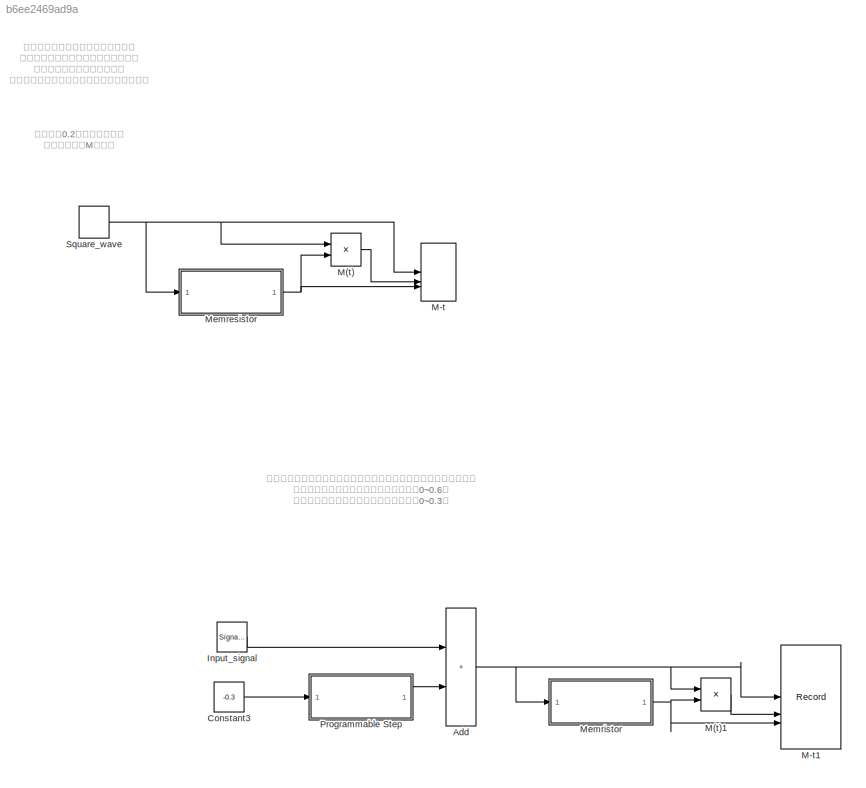
MODEL slx_b6ee2469ad9a
KIND model
CONFIG AbsTol = auto
CONFIG EnableMultiTasking = off
CONFIG FixedStep = auto
CONFIG MaxStep = auto
CONFIG MinStep = auto
CONFIG RelTol = 1e-3
CONFIG SampleTimeConstraint = Unconstrained
CONFIG SolverName = VariableStepAuto
CONFIG StartTime = 0.0
CONFIG StopTime = 4
WORKSPACE source: mxarray member
WORKSPACE R1 = 20
WORKSPACE R2 = 500
WORKSPACE VT = 0.5
WORKSPACE a = 500
WORKSPACE b = 1000
BLOCK [Sum] Add
  IconShape = rectangular
BLOCK [Constant] Constant3
  Value = -0.3
BLOCK [SignalGenerator] Input_signal
  Amplitude = 0.1
  Frequency = 300
  Units = rad/sec
BLOCK [Product] M(t)
  Inputs = */
BLOCK [Product] M(t)1
  Inputs = */
BLOCK [Record] M-t
  CompatibilityTag = XY
  FileSettingsInternal = {"entries":[{"content":{"excelSettings":{"content":{},"type":"Streamout.ExcelSettings"}},"type":"Streamout.FileSettingStorage","uuid":""}],"packageUris":["http:\/\/schema.mathworks.com\/mf0\/streamout_blocks\/R2020a"],"version":"1.0"}  <repeated x4 — deduplicated; at blocks: M-t, M-t1, XY Graph>
  Layout = [1 1]
  SignalsInternal = {"entries":[{"content":{"signals":[{"content":{"blockPath":[],"dimensions":[1],"domain":"","lineColor":"#4dbeee","port":1,"signalID":80,"signalName":"Square_wave"},"type":"RecordBlkView.Signal","uuid":""},{"content":{"blockPath":[],"dimensions":[1],"domain":"","lineColor":"#a2142f","plots":[1],"port":2,"signalID":83,"signalName":"M(t)"},"type":"RecordBlkView.Signal","uuid":""},{"content":{"blockPa...<+295ch>
BLOCK [Record] M-t1
  CompatibilityTag = XY
  Layout = [1 1]
  SignalsInternal = {"entries":[{"content":{"signals":[{"content":{"blockPath":[],"dimensions":[1],"domain":"","lineColor":"#4dbeee","port":1,"signalID":69,"signalName":"Add"},"type":"RecordBlkView.Signal","uuid":""},{"content":{"blockPath":[],"dimensions":[1],"domain":"","lineColor":"#a2142f","plots":[1],"port":2,"signalID":72,"signalName":"M(t)1"},"type":"RecordBlkView.Signal","uuid":""},{"content":{"blockPath":[],...<+289ch>
  VisualizationBindings = {"sparklinesplugin":{"info":[{"bindingParametersList":[],"subplotID":1}]}}
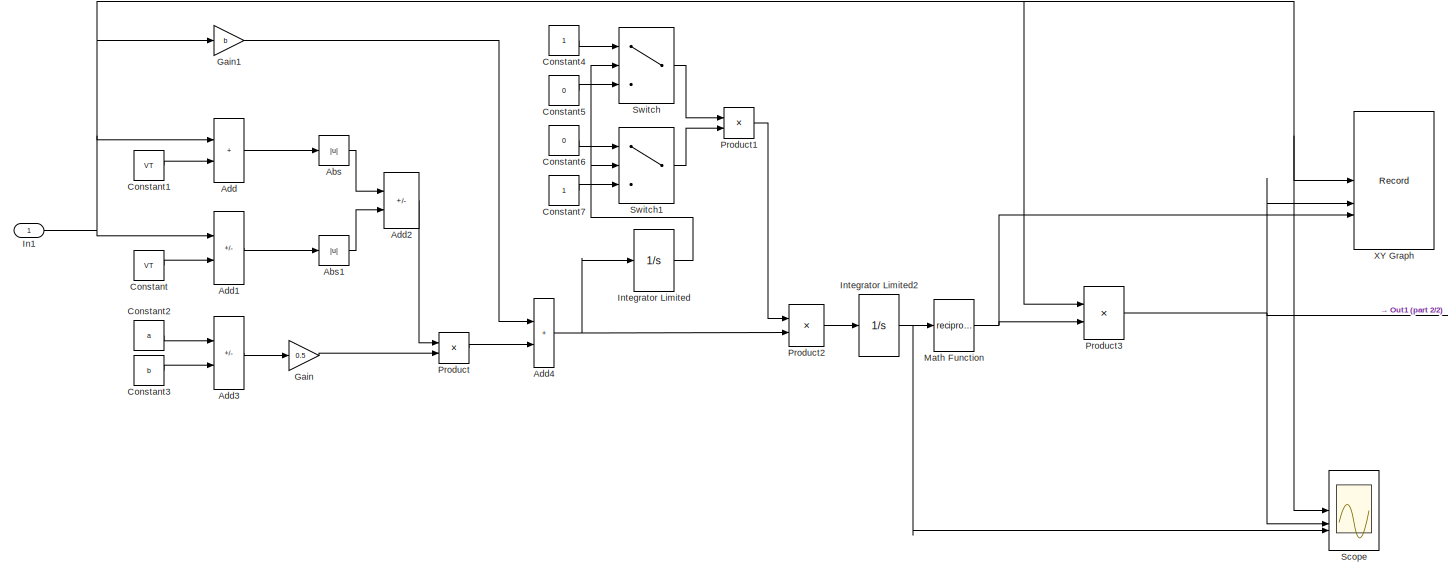
[diagram: Memresistor - part 1/2, most of the canvas]
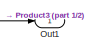
[diagram: Memresistor - part 2/2, middle right region]
BLOCK [SubSystem] Memresistor
BLOCK [Abs] Memresistor/Abs
  SaturateOnIntegerOverflow = off
BLOCK [Abs] Memresistor/Abs1
  SaturateOnIntegerOverflow = off
BLOCK [Sum] Memresistor/Add
  IconShape = rectangular
BLOCK [Sum] Memresistor/Add1
  IconShape = rectangular
  Inputs = +-
BLOCK [Sum] Memresistor/Add2
  IconShape = rectangular
  Inputs = +-
BLOCK [Sum] Memresistor/Add3
  IconShape = rectangular
  Inputs = +-
BLOCK [Sum] Memresistor/Add4
  IconShape = rectangular
BLOCK [Constant] Memresistor/Constant
  Value = VT
BLOCK [Constant] Memresistor/Constant1
  Value = VT
BLOCK [Constant] Memresistor/Constant2
  Value = a
BLOCK [Constant] Memresistor/Constant3
  Value = b
BLOCK [Constant] Memresistor/Constant4
  SampleTime = 0.001
BLOCK [Constant] Memresistor/Constant5
  SampleTime = 0.001
  Value = 0
BLOCK [Constant] Memresistor/Constant6
  SampleTime = 0.001
  Value = 0
BLOCK [Constant] Memresistor/Constant7
  SampleTime = 0.001
BLOCK [Gain] Memresistor/Gain
  Gain = 0.5
BLOCK [Gain] Memresistor/Gain1
  Gain = b
BLOCK [Inport] Memresistor/In1
BLOCK [Integrator] Memresistor/Integrator Limited
  LowerSaturationLimit = 0
  UpperSaturationLimit = 1600
  WrappedStateLowerValue = 0
  WrappedStateUpperValue = 500
BLOCK [Integrator] Memresistor/Integrator Limited2
  InitialCondition = 480
  LowerSaturationLimit = 0
  UpperSaturationLimit = 1600
  WrappedStateLowerValue = 0
  WrappedStateUpperValue = 500
BLOCK [Math] Memresistor/Math Function
  Operator = reciprocal
BLOCK [Outport] Memresistor/Out1
BLOCK [Product] Memresistor/Product
BLOCK [Product] Memresistor/Product1
BLOCK [Product] Memresistor/Product2
BLOCK [Product] Memresistor/Product3
BLOCK [Scope] Memresistor/Scope
  Floating = off
  NumInputPorts = 3
  ScopeSpecificationString = Simulink.scopes.TimeScopeBlockCfg('CurrentConfiguration', extmgr.ConfigurationSet(extmgr.Configuration('Core','General UI',true),extmgr.Configuration('Core','Source UI',true),extmgr.Configuration('Sources','WiredSimulink',true,'DataLoggingVariableName','ScopeData1'),extmgr.Configuration('Visuals','Time Domain',true,'SerializedDisplays',{struct('MinYLimReal','-1.25','MaxYLimReal','1.25','YLabelReal...<+2911ch>
BLOCK [Switch] Memresistor/Switch
  InputSameDT = off
  RndMeth = Ceiling
  SaturateOnIntegerOverflow = off
  Threshold = R1
BLOCK [Switch] Memresistor/Switch1
  Criteria = u2 > Threshold
  InputSameDT = off
  RndMeth = Ceiling
  SaturateOnIntegerOverflow = off
  Threshold = R2
BLOCK [Record] Memresistor/XY Graph
  CompatibilityTag = XY
  Layout = [2 2]
  SignalsInternal = {"entries":[{"content":{"signals":[{"content":{"blockPath":[],"dimensions":[1],"domain":"","lineColor":"#7e2f8e","port":1,"signalID":47,"signalName":"In1"},"type":"RecordBlkView.Signal","uuid":""},{"content":{"blockPath":[],"dimensions":[1],"domain":"","lineColor":"#77ac30","port":2,"signalID":50,"signalName":"Product3"},"type":"RecordBlkView.Signal","uuid":""},{"content":{"blockPath":[],"dimensio...<+282ch>
  VisualizationBindings = {"xyplotplugin":{"info":[{"series":[],"subplotID":1},{"series":[],"subplotID":9}]}}
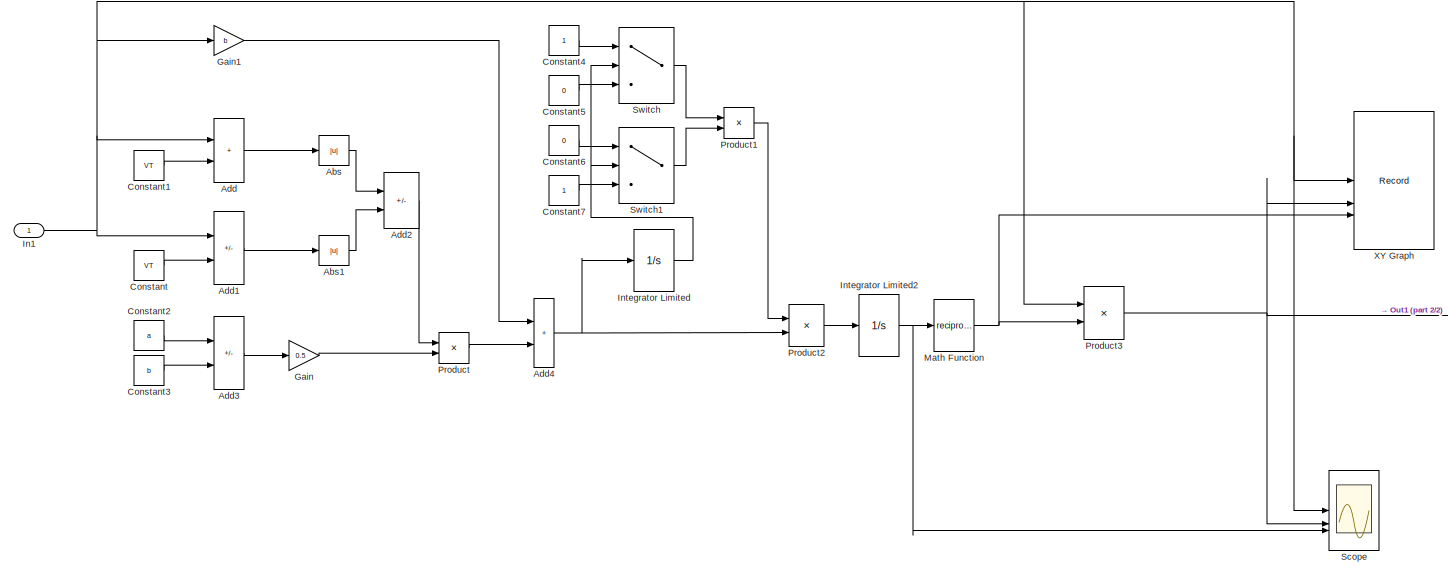
[diagram: Memristor - part 1/2, most of the canvas]
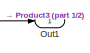
[diagram: Memristor - part 2/2, middle right region]
BLOCK [SubSystem] Memristor
BLOCK [Abs] Memristor/Abs
  SaturateOnIntegerOverflow = off
BLOCK [Abs] Memristor/Abs1
  SaturateOnIntegerOverflow = off
BLOCK [Sum] Memristor/Add
  IconShape = rectangular
BLOCK [Sum] Memristor/Add1
  IconShape = rectangular
  Inputs = +-
BLOCK [Sum] Memristor/Add2
  IconShape = rectangular
  Inputs = +-
BLOCK [Sum] Memristor/Add3
  IconShape = rectangular
  Inputs = +-
BLOCK [Sum] Memristor/Add4
  IconShape = rectangular
BLOCK [Constant] Memristor/Constant
  Value = VT
BLOCK [Constant] Memristor/Constant1
  Value = VT
BLOCK [Constant] Memristor/Constant2
  Value = a
BLOCK [Constant] Memristor/Constant3
  Value = b
BLOCK [Constant] Memristor/Constant4
  SampleTime = 0.001
BLOCK [Constant] Memristor/Constant5
  SampleTime = 0.001
  Value = 0
BLOCK [Constant] Memristor/Constant6
  SampleTime = 0.001
  Value = 0
BLOCK [Constant] Memristor/Constant7
  SampleTime = 0.001
BLOCK [Gain] Memristor/Gain
  Gain = 0.5
BLOCK [Gain] Memristor/Gain1
  Gain = b
BLOCK [Inport] Memristor/In1
BLOCK [Integrator] Memristor/Integrator Limited
  LowerSaturationLimit = 0
  UpperSaturationLimit = 1600
  WrappedStateLowerValue = 0
  WrappedStateUpperValue = 500
BLOCK [Integrator] Memristor/Integrator Limited2
  InitialCondition = 480
  LowerSaturationLimit = 0
  UpperSaturationLimit = 1600
  WrappedStateLowerValue = 0
  WrappedStateUpperValue = 500
BLOCK [Math] Memristor/Math Function
  Operator = reciprocal
BLOCK [Outport] Memristor/Out1
BLOCK [Product] Memristor/Product
BLOCK [Product] Memristor/Product1
BLOCK [Product] Memristor/Product2
BLOCK [Product] Memristor/Product3
BLOCK [Scope] Memristor/Scope
  Floating = off
  NumInputPorts = 3
  ScopeSpecificationString = Simulink.scopes.TimeScopeBlockCfg('CurrentConfiguration', extmgr.ConfigurationSet(extmgr.Configuration('Core','General UI',true),extmgr.Configuration('Core','Source UI',true),extmgr.Configuration('Sources','WiredSimulink',true,'DataLoggingVariableName','ScopeData1'),extmgr.Configuration('Visuals','Time Domain',true,'SerializedDisplays',{struct('MinYLimReal','-1.25','MaxYLimReal','1.25','YLabelReal...<+2911ch>
BLOCK [Switch] Memristor/Switch
  InputSameDT = off
  RndMeth = Ceiling
  SaturateOnIntegerOverflow = off
  Threshold = R1
BLOCK [Switch] Memristor/Switch1
  Criteria = u2 > Threshold
  InputSameDT = off
  RndMeth = Ceiling
  SaturateOnIntegerOverflow = off
  Threshold = R2
BLOCK [Record] Memristor/XY Graph
  CompatibilityTag = XY
  Layout = [2 2]
  SignalsInternal = {"entries":[{"content":{"signals":[{"content":{"blockPath":[],"dimensions":[1],"domain":"","lineColor":"#139fff","port":1,"signalID":58,"signalName":"In1"},"type":"RecordBlkView.Signal","uuid":""},{"content":{"blockPath":[],"dimensions":[1],"domain":"","lineColor":"#ff6929","port":2,"signalID":61,"signalName":"Product3"},"type":"RecordBlkView.Signal","uuid":""},{"content":{"blockPath":[],"dimensio...<+282ch>
  VisualizationBindings = {"xyplotplugin":{"info":[{"series":[],"subplotID":1},{"series":[],"subplotID":9}]}}
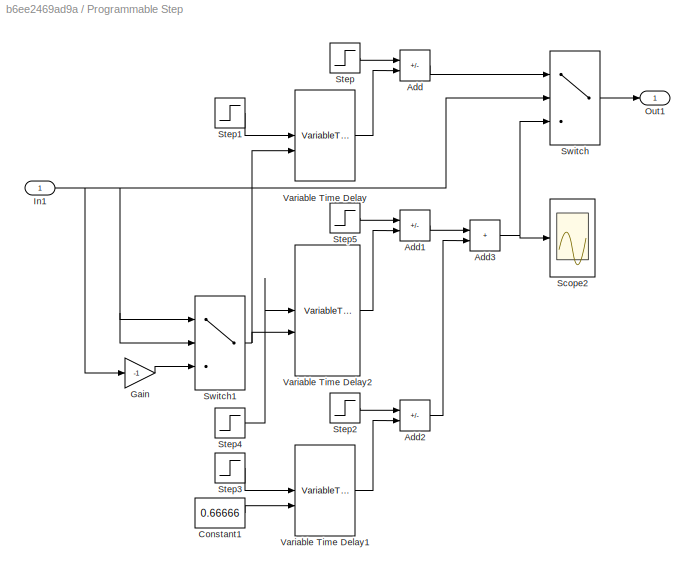
BLOCK [SubSystem] Programmable Step
BLOCK [Sum] Programmable Step/Add
  IconShape = rectangular
  Inputs = +-
BLOCK [Sum] Programmable Step/Add1
  IconShape = rectangular
  Inputs = +-
BLOCK [Sum] Programmable Step/Add2
  IconShape = rectangular
  Inputs = +-
BLOCK [Sum] Programmable Step/Add3
  IconShape = rectangular
BLOCK [Constant] Programmable Step/Constant1
  Value = 0.66666
BLOCK [Gain] Programmable Step/Gain
  Gain = -1
BLOCK [Inport] Programmable Step/In1
BLOCK [Outport] Programmable Step/Out1
BLOCK [Scope] Programmable Step/Scope2
  Floating = off
  NumInputPorts = 1
  ScopeSpecificationString = Simulink.scopes.TimeScopeBlockCfg('CurrentConfiguration', extmgr.ConfigurationSet(extmgr.Configuration('Core','General UI',true),extmgr.Configuration('Core','Source UI',true),extmgr.Configuration('Sources','WiredSimulink',true,'DataLoggingVariableName','ScopeData1'),extmgr.Configuration('Visuals','Time Domain',true,'SerializedDisplays',{struct('MinYLimReal','-1.25','MaxYLimReal','1.25','YLabelReal...<+1409ch>
BLOCK [Step] Programmable Step/Step
  SampleTime = 0
  Time = 0
BLOCK [Step] Programmable Step/Step1
  SampleTime = 0
  Time = 0
BLOCK [Step] Programmable Step/Step2
  SampleTime = 0
  Time = 0
BLOCK [Step] Programmable Step/Step3
  SampleTime = 0
  Time = 0
BLOCK [Step] Programmable Step/Step4
  After = -1
  SampleTime = 0
BLOCK [Step] Programmable Step/Step5
  After = -1
  SampleTime = 0
  Time = 0.66666
BLOCK [Switch] Programmable Step/Switch
  InputSameDT = off
  SaturateOnIntegerOverflow = off
BLOCK [Switch] Programmable Step/Switch1
  InputSameDT = off
  SaturateOnIntegerOverflow = off
  Threshold = 0.1
BLOCK [VariableTransportDelay] Programmable Step/Variable Time Delay
  MaximumDelay = 10
  MaximumPoints = 3072
  ZeroDelay = on
BLOCK [VariableTransportDelay] Programmable Step/Variable Time Delay1
  MaximumDelay = 10
  MaximumPoints = 3072
  ZeroDelay = on
BLOCK [VariableTransportDelay] Programmable Step/Variable Time Delay2
  MaximumDelay = 10
  MaximumPoints = 3072
  ZeroDelay = on
BLOCK [DiscretePulseGenerator] Square_wave
  Amplitude = 0.5
  Period = 1
  PulseType = Time based
ANNOTATION (root): 占空比为0.2的方波激励下， 忆阻器忆阻值M的变化
ANNOTATION (root): 方波电压幅值越大，电阻变化越快； 方波频率越高，电阻增加的速度越慢； 占空比越大，电阻增加越快； 且电阻会随时间持续增加，不存在滞回曲线。
ANNOTATION (root): 通过控制输入，可以控制忆阻器的阻值大小，以实现电位计的作用； 如果输入为正，那么忆阻将增加；范围（0~0.6） 如果输入为负，那么忆阻将减小。范围（0~0.3）
NET Add:1 -> M(t)1:1, M-t1:1, Memristor:1
LINE Constant3:1 -> Programmable Step:1
LINE Input_signal:1 -> Add:1
LINE M(t)1:1 -> M-t1:2
LINE M(t):1 -> M-t:2
LINE Memresistor/Abs1:1 -> Memresistor/Add2:2
LINE Memresistor/Abs:1 -> Memresistor/Add2:1
LINE Memresistor/Add1:1 -> Memresistor/Abs1:1
LINE Memresistor/Add2:1 -> Memresistor/Product:1
LINE Memresistor/Add3:1 -> Memresistor/Gain:1
NET Memresistor/Add4:1 -> Memresistor/Integrator Limited:1, Memresistor/Product2:2
LINE Memresistor/Add:1 -> Memresistor/Abs:1
LINE Memresistor/Constant1:1 -> Memresistor/Add:2
LINE Memresistor/Constant2:1 -> Memresistor/Add3:1
LINE Memresistor/Constant3:1 -> Memresistor/Add3:2
LINE Memresistor/Constant4:1 -> Memresistor/Switch:1
LINE Memresistor/Constant5:1 -> Memresistor/Switch:3
LINE Memresistor/Constant6:1 -> Memresistor/Switch1:1
LINE Memresistor/Constant7:1 -> Memresistor/Switch1:3
LINE Memresistor/Constant:1 -> Memresistor/Add1:2
LINE Memresistor/Gain1:1 -> Memresistor/Add4:1
LINE Memresistor/Gain:1 -> Memresistor/Product:2
NET Memresistor/In1:1 -> Memresistor/Add1:1, Memresistor/Add:1, Memresistor/Gain1:1, Memresistor/Product3:1, Memresistor/Scope:1, Memresistor/XY Graph:1
NET Memresistor/Integrator Limited2:1 -> Memresistor/Math Function:1, Memresistor/Scope:3
NET Memresistor/Integrator Limited:1 -> Memresistor/Switch1:2, Memresistor/Switch:2
NET Memresistor/Math Function:1 -> Memresistor/Product3:2, Memresistor/XY Graph:3
LINE Memresistor/Product1:1 -> Memresistor/Product2:1
LINE Memresistor/Product2:1 -> Memresistor/Integrator Limited2:1
NET Memresistor/Product3:1 -> Memresistor/Out1:1, Memresistor/Scope:2, Memresistor/XY Graph:2
LINE Memresistor/Product:1 -> Memresistor/Add4:2
LINE Memresistor/Switch1:1 -> Memresistor/Product1:2
LINE Memresistor/Switch:1 -> Memresistor/Product1:1
NET Memresistor:1 -> M(t):2, M-t:3
LINE Memristor/Abs1:1 -> Memristor/Add2:2
LINE Memristor/Abs:1 -> Memristor/Add2:1
LINE Memristor/Add1:1 -> Memristor/Abs1:1
LINE Memristor/Add2:1 -> Memristor/Product:1
LINE Memristor/Add3:1 -> Memristor/Gain:1
NET Memristor/Add4:1 -> Memristor/Integrator Limited:1, Memristor/Product2:2
LINE Memristor/Add:1 -> Memristor/Abs:1
LINE Memristor/Constant1:1 -> Memristor/Add:2
LINE Memristor/Constant2:1 -> Memristor/Add3:1
LINE Memristor/Constant3:1 -> Memristor/Add3:2
LINE Memristor/Constant4:1 -> Memristor/Switch:1
LINE Memristor/Constant5:1 -> Memristor/Switch:3
LINE Memristor/Constant6:1 -> Memristor/Switch1:1
LINE Memristor/Constant7:1 -> Memristor/Switch1:3
LINE Memristor/Constant:1 -> Memristor/Add1:2
LINE Memristor/Gain1:1 -> Memristor/Add4:1
LINE Memristor/Gain:1 -> Memristor/Product:2
NET Memristor/In1:1 -> Memristor/Add1:1, Memristor/Add:1, Memristor/Gain1:1, Memristor/Product3:1, Memristor/Scope:1, Memristor/XY Graph:1
NET Memristor/Integrator Limited2:1 -> Memristor/Math Function:1, Memristor/Scope:3
NET Memristor/Integrator Limited:1 -> Memristor/Switch1:2, Memristor/Switch:2
NET Memristor/Math Function:1 -> Memristor/Product3:2, Memristor/XY Graph:3
LINE Memristor/Product1:1 -> Memristor/Product2:1
LINE Memristor/Product2:1 -> Memristor/Integrator Limited2:1
NET Memristor/Product3:1 -> Memristor/Out1:1, Memristor/Scope:2, Memristor/XY Graph:2
LINE Memristor/Product:1 -> Memristor/Add4:2
LINE Memristor/Switch1:1 -> Memristor/Product1:2
LINE Memristor/Switch:1 -> Memristor/Product1:1
NET Memristor:1 -> M(t)1:2, M-t1:3
LINE Programmable Step/Add1:1 -> Programmable Step/Add3:1
LINE Programmable Step/Add2:1 -> Programmable Step/Add3:2
NET Programmable Step/Add3:1 -> Programmable Step/Scope2:1, Programmable Step/Switch:3
LINE Programmable Step/Add:1 -> Programmable Step/Switch:1
LINE Programmable Step/Constant1:1 -> Programmable Step/Variable Time Delay1:2
LINE Programmable Step/Gain:1 -> Programmable Step/Switch1:3
NET Programmable Step/In1:1 -> Programmable Step/Gain:1, Programmable Step/Switch1:1, Programmable Step/Switch1:2, Programmable Step/Switch:2
LINE Programmable Step/Step1:1 -> Programmable Step/Variable Time Delay:1
LINE Programmable Step/Step2:1 -> Programmable Step/Add2:1
LINE Programmable Step/Step3:1 -> Programmable Step/Variable Time Delay1:1
LINE Programmable Step/Step4:1 -> Programmable Step/Variable Time Delay2:1
LINE Programmable Step/Step5:1 -> Programmable Step/Add1:1
LINE Programmable Step/Step:1 -> Programmable Step/Add:1
NET Programmable Step/Switch1:1 -> Programmable Step/Variable Time Delay2:2, Programmable Step/Variable Time Delay:2
LINE Programmable Step/Switch:1 -> Programmable Step/Out1:1
LINE Programmable Step/Variable Time Delay1:1 -> Programmable Step/Add2:2
LINE Programmable Step/Variable Time Delay2:1 -> Programmable Step/Add1:2
LINE Programmable Step/Variable Time Delay:1 -> Programmable Step/Add:2
LINE Programmable Step:1 -> Add:2
NET Square_wave:1 -> M(t):1, M-t:1, Memresistor:1
note: NET lines group one-source signal fan-out (src -> all destinations, sorted); 1:1 wires keep LINE
